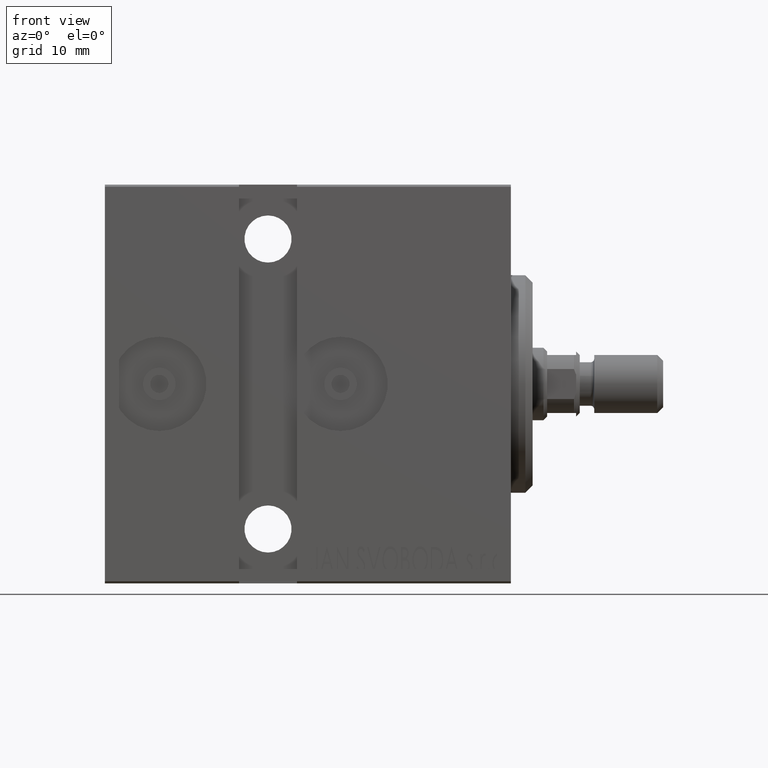
[diagram: clean part render]
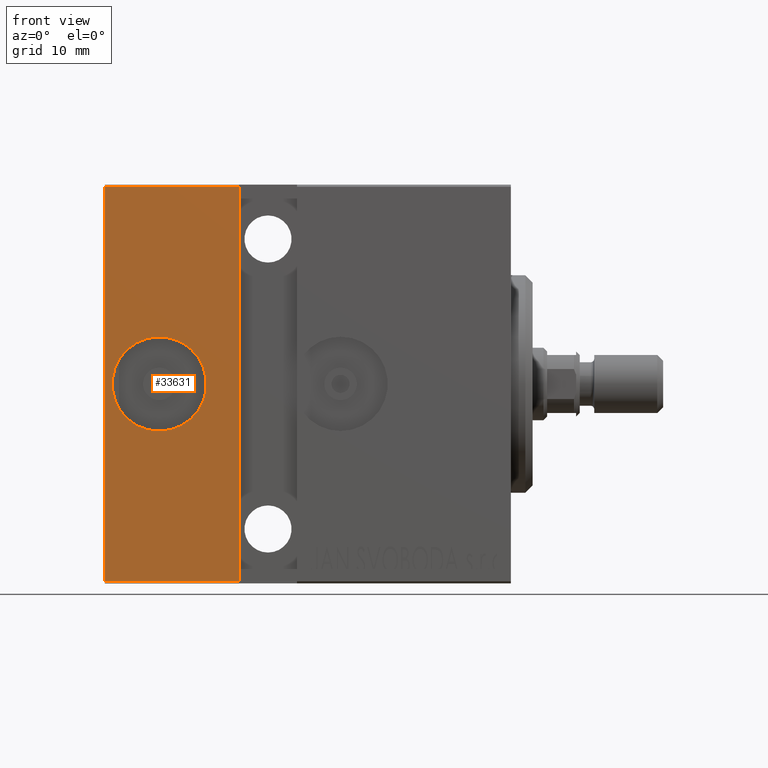
[diagram: same view with one face highlighted and labeled with its STEP entity id]
A machine part, front view. The second image highlights one B-rep face of the part: STEP entity #33631.
In plain terms, the highlighted planar face has unit normal (-0, 1, -0).
Its self-contained STEP definition (entity closure, byte-faithful):
#388 = CARTESIAN_POINT ( 'NONE',  ( 48.50000000000000000, 17.50000000000000000, -6.499999999999998224 ) ) ;
#441 = DIRECTION ( 'NONE',  ( 0.000000000000000000, -1.261617073437677752E-16, 1.000000000000000000 ) ) ;
#2121 = EDGE_CURVE ( 'NONE', #22358, #20956, #33592, .T. ) ;
#2149 = EDGE_LOOP ( 'NONE', ( #19407, #25831 ) ) ;
#2961 = FACE_BOUND ( 'NONE', #2149, .T. ) ;
#3747 = CARTESIAN_POINT ( 'NONE',  ( 48.50000000000000000, 17.50000000000000000, 6.500000000000003553 ) ) ;
#4285 = ORIENTED_EDGE ( 'NONE', *, *, #8440, .T. ) ;
#4843 = CARTESIAN_POINT ( 'NONE',  ( 56.00000000000000000, 17.50000000000000355, -27.19999999999999574 ) ) ;
#6033 = DIRECTION ( 'NONE',  ( 0.000000000000000000, 1.261617073437677752E-16, -1.000000000000000000 ) ) ;
#6803 = CARTESIAN_POINT ( 'NONE',  ( 56.00000000000000000, 17.50000000000000355, -27.19999999999999574 ) ) ;
#7721 = VERTEX_POINT ( 'NONE', #4843 ) ;
#8152 = CARTESIAN_POINT ( 'NONE',  ( 56.00000000000000000, 17.49999999999999645, 27.20000000000000995 ) ) ;
#8440 = EDGE_CURVE ( 'NONE', #16703, #25521, #10784, .T. ) ;
#9504 = ORIENTED_EDGE ( 'NONE', *, *, #31579, .F. ) ;
#9964 = CARTESIAN_POINT ( 'NONE',  ( 48.50000000000000000, 17.50000000000000000, 2.207829878515935943E-15 ) ) ;
#10454 = CARTESIAN_POINT ( 'NONE',  ( 56.00000000000000000, 17.49999999999999645, 27.20000000000000995 ) ) ;
#10784 = LINE ( 'NONE', #8152, #11283 ) ;
#11283 = VECTOR ( 'NONE', #14311, 1000.000000000000000 ) ;
#12731 = CIRCLE ( 'NONE', #37294, 6.500000000000000888 ) ;
#12988 = EDGE_CURVE ( 'NONE', #20956, #22358, #12731, .T. ) ;
#13280 = PLANE ( 'NONE',  #26523 ) ;
#13828 = LINE ( 'NONE', #17125, #36948 ) ;
#14129 = EDGE_LOOP ( 'NONE', ( #9504, #24781, #21169, #4285 ) ) ;
#14311 = DIRECTION ( 'NONE',  ( 1.000000000000000000, 0.000000000000000000, 0.000000000000000000 ) ) ;
#16703 = VERTEX_POINT ( 'NONE', #22902 ) ;
#17125 = CARTESIAN_POINT ( 'NONE',  ( 37.49999999999999289, 17.50000000000000000, -27.50000000000000711 ) ) ;
#19407 = ORIENTED_EDGE ( 'NONE', *, *, #12988, .F. ) ;
#20956 = VERTEX_POINT ( 'NONE', #3747 ) ;
#21169 = ORIENTED_EDGE ( 'NONE', *, *, #27071, .F. ) ;
#21747 = DIRECTION ( 'NONE',  ( 1.848892746611746419E-32, 1.000000000000000000, 1.105614492169230117E-16 ) ) ;
#22358 = VERTEX_POINT ( 'NONE', #388 ) ;
#22719 = CARTESIAN_POINT ( 'NONE',  ( 56.00000000000000000, 17.50000000000000355, -27.50000000000000355 ) ) ;
#22902 = CARTESIAN_POINT ( 'NONE',  ( 37.50000000000000000, 17.50000000000000000, 27.20000000000000639 ) ) ;
#24565 = DIRECTION ( 'NONE',  ( -1.261617073437677259E-16, -0.000000000000000000, -1.000000000000000000 ) ) ;
#24615 = DIRECTION ( 'NONE',  ( 0.000000000000000000, 0.000000000000000000, 1.000000000000000000 ) ) ;
#24781 = ORIENTED_EDGE ( 'NONE', *, *, #27012, .T. ) ;
#25521 = VERTEX_POINT ( 'NONE', #10454 ) ;
#25721 = VERTEX_POINT ( 'NONE', #36929 ) ;
#25831 = ORIENTED_EDGE ( 'NONE', *, *, #2121, .F. ) ;
#26027 = FACE_OUTER_BOUND ( 'NONE', #14129, .T. ) ;
#26523 = AXIS2_PLACEMENT_3D ( 'NONE', #22719, #36120, #6033 ) ;
#27012 = EDGE_CURVE ( 'NONE', #7721, #25721, #36891, .T. ) ;
#27071 = EDGE_CURVE ( 'NONE', #16703, #25721, #13828, .T. ) ;
#27812 = VECTOR ( 'NONE', #43036, 1000.000000000000000 ) ;
#29292 = VECTOR ( 'NONE', #441, 1000.000000000000000 ) ;
#30172 = DIRECTION ( 'NONE',  ( 1.848892746611746419E-32, 1.000000000000000000, 1.105614492169230117E-16 ) ) ;
#31489 = AXIS2_PLACEMENT_3D ( 'NONE', #41532, #21747, #24615 ) ;
#31579 = EDGE_CURVE ( 'NONE', #7721, #25521, #40848, .T. ) ;
#33592 = CIRCLE ( 'NONE', #31489, 6.500000000000000888 ) ;
#33631 = ADVANCED_FACE ( 'NONE', ( #2961, #26027 ), #13280, .F. ) ;
#36120 = DIRECTION ( 'NONE',  ( 0.000000000000000000, -1.000000000000000000, -1.261617073437677752E-16 ) ) ;
#36891 = LINE ( 'NONE', #6803, #27812 ) ;
#36929 = CARTESIAN_POINT ( 'NONE',  ( 37.49999999999999289, 17.50000000000000000, -27.19999999999999574 ) ) ;
#36948 = VECTOR ( 'NONE', #24565, 1000.000000000000000 ) ;
#37294 = AXIS2_PLACEMENT_3D ( 'NONE', #9964, #30172, #43122 ) ;
#40628 = CARTESIAN_POINT ( 'NONE',  ( 56.00000000000000000, 17.50000000000000355, -27.50000000000000355 ) ) ;
#40848 = LINE ( 'NONE', #40628, #29292 ) ;
#41532 = CARTESIAN_POINT ( 'NONE',  ( 48.50000000000000000, 17.50000000000000000, 2.207829878515935943E-15 ) ) ;
#43036 = DIRECTION ( 'NONE',  ( -1.000000000000000000, 0.000000000000000000, 0.000000000000000000 ) ) ;
#43122 = DIRECTION ( 'NONE',  ( 0.000000000000000000, 0.000000000000000000, 1.000000000000000000 ) ) ;